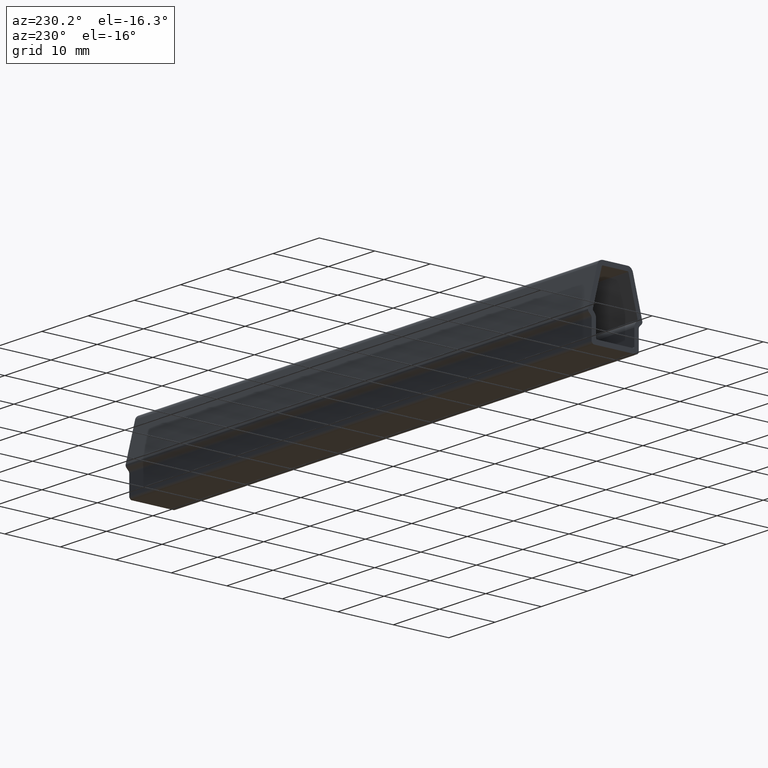
[diagram: clean part render]
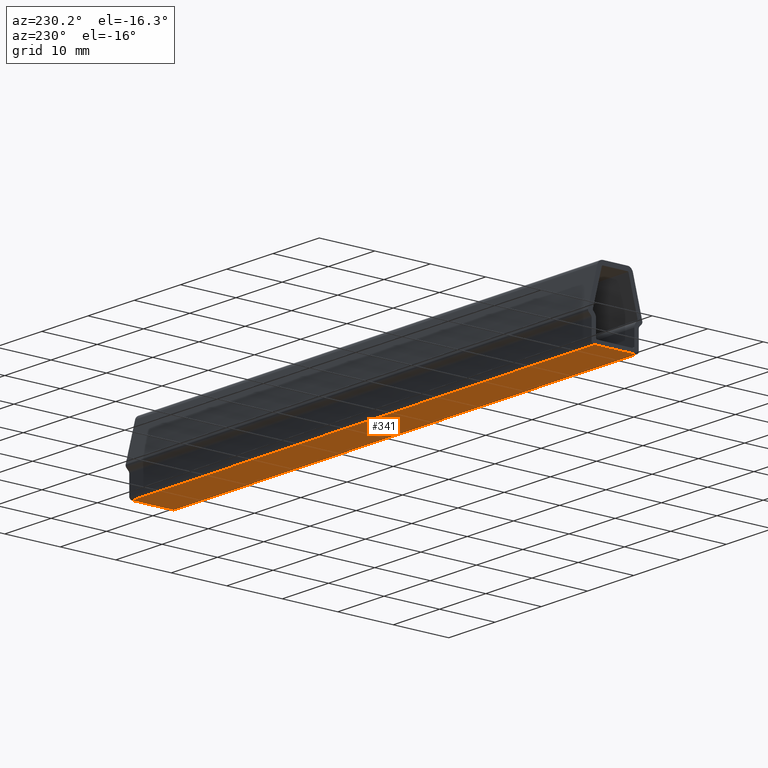
[diagram: same view with one face highlighted and labeled with its STEP entity id]
A machine part, auxiliary view. The second image highlights one B-rep face of the part: STEP entity #341.
In plain terms, the highlighted planar face has unit normal (0, 0, 1).
Its self-contained STEP definition (entity closure, byte-faithful):
#283=CARTESIAN_POINT('',(0.0,-3.749085810787975,0.0));
#284=VERTEX_POINT('',#283);
#292=CARTESIAN_POINT('',(100.0,-3.749085810787975,0.0));
#293=VERTEX_POINT('',#292);
#294=CARTESIAN_POINT('',(100.0,-3.749085810787975,0.0));
#295=DIRECTION('',(-1.0,0.0,0.0));
#296=VECTOR('',#295,100.0);
#297=LINE('',#294,#296);
#298=EDGE_CURVE('',#293,#284,#297,.T.);
#311=CARTESIAN_POINT('',(105.0,4.123994391866773,0.0));
#312=DIRECTION('',(0.0,0.0,1.0));
#313=DIRECTION('',(-1.0,0.0,0.0));
#314=AXIS2_PLACEMENT_3D('',#311,#312,#313);
#315=PLANE('',#314);
#316=CARTESIAN_POINT('',(0.0,3.749085810787975,0.0));
#317=VERTEX_POINT('',#316);
#318=CARTESIAN_POINT('',(0.0,-3.749085810787975,0.0));
#319=DIRECTION('',(0.0,1.0,0.0));
#320=VECTOR('',#319,7.498171621575949);
#321=LINE('',#318,#320);
#322=EDGE_CURVE('',#284,#317,#321,.T.);
#323=ORIENTED_EDGE('',*,*,#322,.T.);
#324=CARTESIAN_POINT('',(100.0,3.749085810787975,0.0));
#325=VERTEX_POINT('',#324);
#326=CARTESIAN_POINT('',(100.0,3.749085810787975,0.0));
#327=DIRECTION('',(-1.0,0.0,0.0));
#328=VECTOR('',#327,100.0);
#329=LINE('',#326,#328);
#330=EDGE_CURVE('',#325,#317,#329,.T.);
#331=ORIENTED_EDGE('',*,*,#330,.F.);
#332=CARTESIAN_POINT('',(100.0,-3.749085810787975,0.0));
#333=DIRECTION('',(0.0,1.0,0.0));
#334=VECTOR('',#333,7.498171621575949);
#335=LINE('',#332,#334);
#336=EDGE_CURVE('',#293,#325,#335,.T.);
#337=ORIENTED_EDGE('',*,*,#336,.F.);
#338=ORIENTED_EDGE('',*,*,#298,.T.);
#339=EDGE_LOOP('',(#323,#331,#337,#338));
#340=FACE_OUTER_BOUND('',#339,.T.);
#341=ADVANCED_FACE('',(#340),#315,.F.);